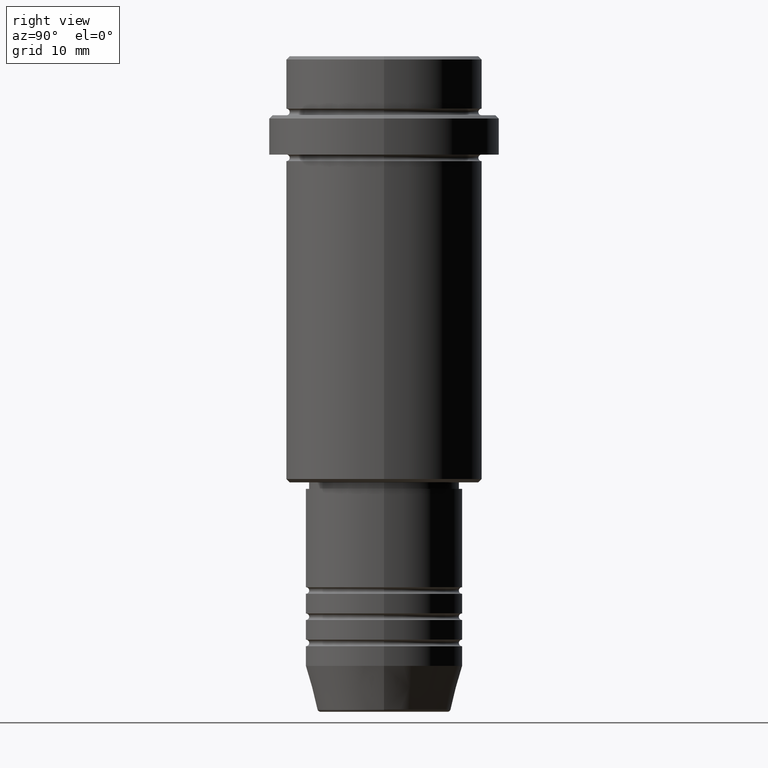
[diagram: clean part render]
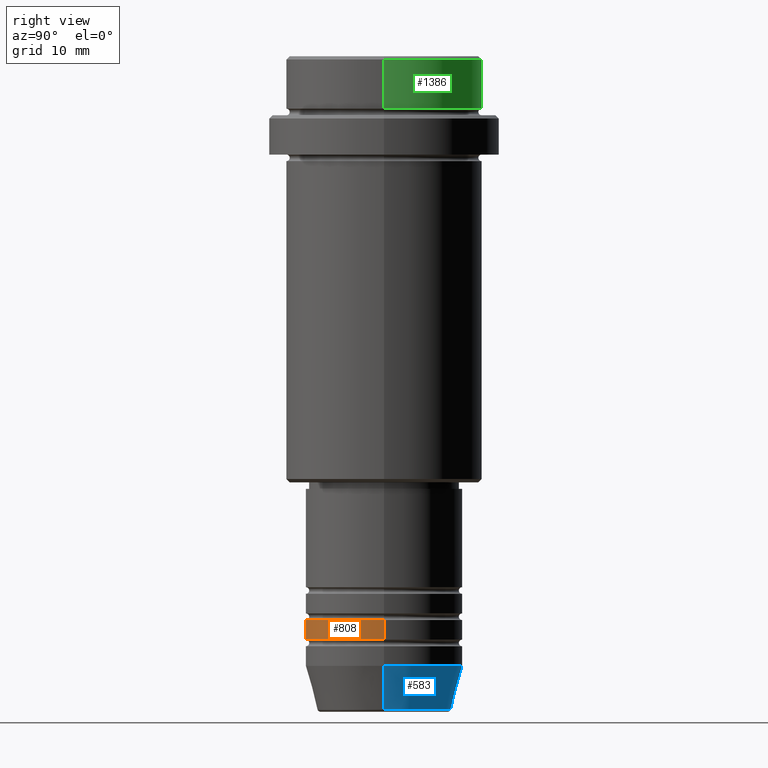
[diagram: same view with three faces highlighted in distinct colors, each labeled with its STEP entity id]
A machine part, right view with three faces highlighted in distinct colors.
Their STEP definitions:

[orange] entity #808 — the highlighted cylindrical surface (partial cylindrical patch) has radius 12 mm, axis along (-0, -0, 1).
#70 = DIRECTION ( 'NONE',  ( -0.000000000000000000, -0.000000000000000000, 1.000000000000000000 ) ) ;
#123 = VERTEX_POINT ( 'NONE', #485 ) ;
#163 = CIRCLE ( 'NONE', #582, 12.00000000000000000 ) ;
#171 = CARTESIAN_POINT ( 'NONE',  ( 12.00000000000000000, 0.000000000000000000, 0.000000000000000000 ) ) ;
#178 = ORIENTED_EDGE ( 'NONE', *, *, #846, .F. ) ;
#232 = CIRCLE ( 'NONE', #282, 12.00000000000000000 ) ;
#282 = AXIS2_PLACEMENT_3D ( 'NONE', #311, #552, #1397 ) ;
#311 = CARTESIAN_POINT ( 'NONE',  ( 0.000000000000000000, 0.000000000000000000, -88.99999999999988631 ) ) ;
#335 = CARTESIAN_POINT ( 'NONE',  ( -12.00000000000000000, 1.469576158976823947E-15, 0.000000000000000000 ) ) ;
#339 = CARTESIAN_POINT ( 'NONE',  ( 12.00000000000000000, 0.000000000000000000, -85.99999999999988631 ) ) ;
#386 = DIRECTION ( 'NONE',  ( -0.000000000000000000, -0.000000000000000000, 1.000000000000000000 ) ) ;
#464 = VECTOR ( 'NONE', #573, 1000.000000000000000 ) ;
#485 = CARTESIAN_POINT ( 'NONE',  ( -12.00000000000000000, 1.469576158976823947E-15, -88.99999999999988631 ) ) ;
#524 = DIRECTION ( 'NONE',  ( 1.000000000000000000, 0.000000000000000000, 0.000000000000000000 ) ) ;
#528 = CARTESIAN_POINT ( 'NONE',  ( 0.000000000000000000, 0.000000000000000000, 0.000000000000000000 ) ) ;
#539 = VECTOR ( 'NONE', #386, 1000.000000000000000 ) ;
#546 = CARTESIAN_POINT ( 'NONE',  ( -12.00000000000000000, 1.469576158976823947E-15, -85.99999999999988631 ) ) ;
#552 = DIRECTION ( 'NONE',  ( -0.000000000000000000, -0.000000000000000000, 1.000000000000000000 ) ) ;
#573 = DIRECTION ( 'NONE',  ( -0.000000000000000000, -0.000000000000000000, 1.000000000000000000 ) ) ;
#582 = AXIS2_PLACEMENT_3D ( 'NONE', #1276, #70, #1148 ) ;
#603 = LINE ( 'NONE', #171, #539 ) ;
#619 = EDGE_CURVE ( 'NONE', #768, #1248, #163, .T. ) ;
#718 = EDGE_CURVE ( 'NONE', #123, #1090, #232, .T. ) ;
#768 = VERTEX_POINT ( 'NONE', #546 ) ;
#808 = ADVANCED_FACE ( 'NONE', ( #1095 ), #1289, .T. ) ;
#846 = EDGE_CURVE ( 'NONE', #123, #768, #907, .T. ) ;
#894 = EDGE_LOOP ( 'NONE', ( #178, #1388, #1122, #1063 ) ) ;
#907 = LINE ( 'NONE', #335, #464 ) ;
#965 = EDGE_CURVE ( 'NONE', #1090, #1248, #603, .T. ) ;
#1063 = ORIENTED_EDGE ( 'NONE', *, *, #619, .F. ) ;
#1083 = CARTESIAN_POINT ( 'NONE',  ( 12.00000000000000000, 0.000000000000000000, -88.99999999999988631 ) ) ;
#1090 = VERTEX_POINT ( 'NONE', #1083 ) ;
#1095 = FACE_OUTER_BOUND ( 'NONE', #894, .T. ) ;
#1122 = ORIENTED_EDGE ( 'NONE', *, *, #965, .T. ) ;
#1135 = AXIS2_PLACEMENT_3D ( 'NONE', #528, #1200, #524 ) ;
#1148 = DIRECTION ( 'NONE',  ( 1.000000000000000000, 0.000000000000000000, 0.000000000000000000 ) ) ;
#1200 = DIRECTION ( 'NONE',  ( -0.000000000000000000, -0.000000000000000000, 1.000000000000000000 ) ) ;
#1248 = VERTEX_POINT ( 'NONE', #339 ) ;
#1276 = CARTESIAN_POINT ( 'NONE',  ( 0.000000000000000000, 0.000000000000000000, -85.99999999999988631 ) ) ;
#1289 = CYLINDRICAL_SURFACE ( 'NONE', #1135, 12.00000000000000000 ) ;
#1388 = ORIENTED_EDGE ( 'NONE', *, *, #718, .T. ) ;
#1397 = DIRECTION ( 'NONE',  ( 1.000000000000000000, 0.000000000000000000, 0.000000000000000000 ) ) ;

[blue] entity #583 — the highlighted conical surface has half-angle 15 deg.
#34 = ORIENTED_EDGE ( 'NONE', *, *, #82, .F. ) ;
#82 = EDGE_CURVE ( 'NONE', #436, #792, #1010, .T. ) ;
#132 = VERTEX_POINT ( 'NONE', #1367 ) ;
#210 = AXIS2_PLACEMENT_3D ( 'NONE', #951, #633, #387 ) ;
#290 = DIRECTION ( 'NONE',  ( 1.000000000000000000, 0.000000000000000000, 0.000000000000000000 ) ) ;
#387 = DIRECTION ( 'NONE',  ( 1.000000000000000000, 0.000000000000000000, 0.000000000000000000 ) ) ;
#436 = VERTEX_POINT ( 'NONE', #811 ) ;
#453 = CARTESIAN_POINT ( 'NONE',  ( 12.00000000000000000, 0.000000000000000000, -93.00000000000000000 ) ) ;
#544 = EDGE_LOOP ( 'NONE', ( #1117, #1059, #1166, #34 ) ) ;
#545 = DIRECTION ( 'NONE',  ( -0.2588190451025213501, 3.169619151431772337E-17, 0.9659258262890680902 ) ) ;
#553 = VERTEX_POINT ( 'NONE', #1008 ) ;
#576 = EDGE_CURVE ( 'NONE', #792, #553, #931, .T. ) ;
#583 = ADVANCED_FACE ( 'NONE', ( #1281 ), #1042, .T. ) ;
#627 = EDGE_CURVE ( 'NONE', #436, #132, #1112, .T. ) ;
#633 = DIRECTION ( 'NONE',  ( -0.000000000000000000, -0.000000000000000000, 1.000000000000000000 ) ) ;
#715 = DIRECTION ( 'NONE',  ( 1.000000000000000000, 0.000000000000000000, 0.000000000000000000 ) ) ;
#731 = DIRECTION ( 'NONE',  ( -0.000000000000000000, -0.000000000000000000, 1.000000000000000000 ) ) ;
#767 = LINE ( 'NONE', #1175, #892 ) ;
#792 = VERTEX_POINT ( 'NONE', #1316 ) ;
#811 = CARTESIAN_POINT ( 'NONE',  ( 10.22365507213718949, 0.000000000000000000, -99.62940952255127058 ) ) ;
#851 = CARTESIAN_POINT ( 'NONE',  ( 0.000000000000000000, 0.000000000000000000, -93.00000000000000000 ) ) ;
#892 = VECTOR ( 'NONE', #545, 1000.000000000000000 ) ;
#931 = CIRCLE ( 'NONE', #210, 12.00000000000000000 ) ;
#951 = CARTESIAN_POINT ( 'NONE',  ( 0.000000000000000000, 0.000000000000000000, -93.00000000000000000 ) ) ;
#1008 = CARTESIAN_POINT ( 'NONE',  ( -12.00000000000000000, 1.469576158976823947E-15, -93.00000000000000000 ) ) ;
#1010 = LINE ( 'NONE', #453, #1041 ) ;
#1041 = VECTOR ( 'NONE', #1097, 1000.000000000000000 ) ;
#1042 = CONICAL_SURFACE ( 'NONE', #1203, 12.00000000000000000, 0.2617993877991500740 ) ;
#1050 = CARTESIAN_POINT ( 'NONE',  ( 0.000000000000000000, 0.000000000000000000, -99.62940952255127058 ) ) ;
#1059 = ORIENTED_EDGE ( 'NONE', *, *, #1111, .T. ) ;
#1064 = DIRECTION ( 'NONE',  ( -0.000000000000000000, -0.000000000000000000, 1.000000000000000000 ) ) ;
#1097 = DIRECTION ( 'NONE',  ( 0.2588190451025213501, 0.000000000000000000, 0.9659258262890680902 ) ) ;
#1111 = EDGE_CURVE ( 'NONE', #132, #553, #767, .T. ) ;
#1112 = CIRCLE ( 'NONE', #1378, 10.22365507213718949 ) ;
#1117 = ORIENTED_EDGE ( 'NONE', *, *, #627, .T. ) ;
#1166 = ORIENTED_EDGE ( 'NONE', *, *, #576, .F. ) ;
#1175 = CARTESIAN_POINT ( 'NONE',  ( -12.00000000000000000, 1.469576158976823947E-15, -93.00000000000000000 ) ) ;
#1203 = AXIS2_PLACEMENT_3D ( 'NONE', #851, #1064, #715 ) ;
#1281 = FACE_OUTER_BOUND ( 'NONE', #544, .T. ) ;
#1316 = CARTESIAN_POINT ( 'NONE',  ( 12.00000000000000000, 0.000000000000000000, -93.00000000000000000 ) ) ;
#1367 = CARTESIAN_POINT ( 'NONE',  ( -10.22365507213718949, 1.360806402472382547E-15, -99.62940952255127058 ) ) ;
#1378 = AXIS2_PLACEMENT_3D ( 'NONE', #1050, #731, #290 ) ;

[green] entity #1386 — the highlighted cylindrical surface (partial cylindrical patch) has radius 15 mm, axis along (-0, -0, 1).
#7 = FACE_OUTER_BOUND ( 'NONE', #742, .T. ) ;
#22 = DIRECTION ( 'NONE',  ( 1.000000000000000000, 0.000000000000000000, 0.000000000000000000 ) ) ;
#57 = CARTESIAN_POINT ( 'NONE',  ( -15.00000000000000000, 1.836970198721029589E-15, -7.999999999999998224 ) ) ;
#84 = LINE ( 'NONE', #1396, #844 ) ;
#168 = AXIS2_PLACEMENT_3D ( 'NONE', #1119, #1011, #22 ) ;
#189 = AXIS2_PLACEMENT_3D ( 'NONE', #899, #226, #669 ) ;
#193 = EDGE_CURVE ( 'NONE', #1015, #668, #494, .T. ) ;
#196 = ORIENTED_EDGE ( 'NONE', *, *, #212, .T. ) ;
#212 = EDGE_CURVE ( 'NONE', #872, #1015, #252, .T. ) ;
#226 = DIRECTION ( 'NONE',  ( 0.000000000000000000, 0.000000000000000000, -1.000000000000000000 ) ) ;
#252 = CIRCLE ( 'NONE', #1066, 15.00000000000000000 ) ;
#264 = CARTESIAN_POINT ( 'NONE',  ( -15.00000000000000000, 1.836970198721029589E-15, 0.000000000000000000 ) ) ;
#270 = DIRECTION ( 'NONE',  ( -0.000000000000000000, -0.000000000000000000, 1.000000000000000000 ) ) ;
#377 = CARTESIAN_POINT ( 'NONE',  ( 15.00000000000000000, 0.000000000000000000, -0.5000000000000108802 ) ) ;
#385 = ORIENTED_EDGE ( 'NONE', *, *, #1237, .F. ) ;
#494 = LINE ( 'NONE', #264, #820 ) ;
#575 = ORIENTED_EDGE ( 'NONE', *, *, #193, .T. ) ;
#601 = VERTEX_POINT ( 'NONE', #377 ) ;
#668 = VERTEX_POINT ( 'NONE', #1254 ) ;
#669 = DIRECTION ( 'NONE',  ( 1.000000000000000000, 0.000000000000000000, 0.000000000000000000 ) ) ;
#670 = CARTESIAN_POINT ( 'NONE',  ( 15.00000000000000000, 0.000000000000000000, -7.999999999999998224 ) ) ;
#683 = CYLINDRICAL_SURFACE ( 'NONE', #168, 15.00000000000000000 ) ;
#711 = DIRECTION ( 'NONE',  ( 1.000000000000000000, 0.000000000000000000, 0.000000000000000000 ) ) ;
#742 = EDGE_LOOP ( 'NONE', ( #196, #575, #1259, #385 ) ) ;
#820 = VECTOR ( 'NONE', #1159, 1000.000000000000000 ) ;
#844 = VECTOR ( 'NONE', #1235, 1000.000000000000000 ) ;
#872 = VERTEX_POINT ( 'NONE', #670 ) ;
#893 = CIRCLE ( 'NONE', #189, 15.00000000000000000 ) ;
#899 = CARTESIAN_POINT ( 'NONE',  ( 0.000000000000000000, 0.000000000000000000, -0.5000000000000108802 ) ) ;
#1011 = DIRECTION ( 'NONE',  ( -0.000000000000000000, -0.000000000000000000, 1.000000000000000000 ) ) ;
#1015 = VERTEX_POINT ( 'NONE', #57 ) ;
#1035 = CARTESIAN_POINT ( 'NONE',  ( 0.000000000000000000, 0.000000000000000000, -7.999999999999998224 ) ) ;
#1066 = AXIS2_PLACEMENT_3D ( 'NONE', #1035, #270, #711 ) ;
#1119 = CARTESIAN_POINT ( 'NONE',  ( 0.000000000000000000, 0.000000000000000000, 0.000000000000000000 ) ) ;
#1159 = DIRECTION ( 'NONE',  ( -0.000000000000000000, -0.000000000000000000, 1.000000000000000000 ) ) ;
#1235 = DIRECTION ( 'NONE',  ( -0.000000000000000000, -0.000000000000000000, 1.000000000000000000 ) ) ;
#1237 = EDGE_CURVE ( 'NONE', #872, #601, #84, .T. ) ;
#1254 = CARTESIAN_POINT ( 'NONE',  ( -15.00000000000000000, 1.836970198721029589E-15, -0.5000000000000108802 ) ) ;
#1259 = ORIENTED_EDGE ( 'NONE', *, *, #1375, .T. ) ;
#1375 = EDGE_CURVE ( 'NONE', #668, #601, #893, .T. ) ;
#1386 = ADVANCED_FACE ( 'NONE', ( #7 ), #683, .T. ) ;
#1396 = CARTESIAN_POINT ( 'NONE',  ( 15.00000000000000000, 0.000000000000000000, 0.000000000000000000 ) ) ;